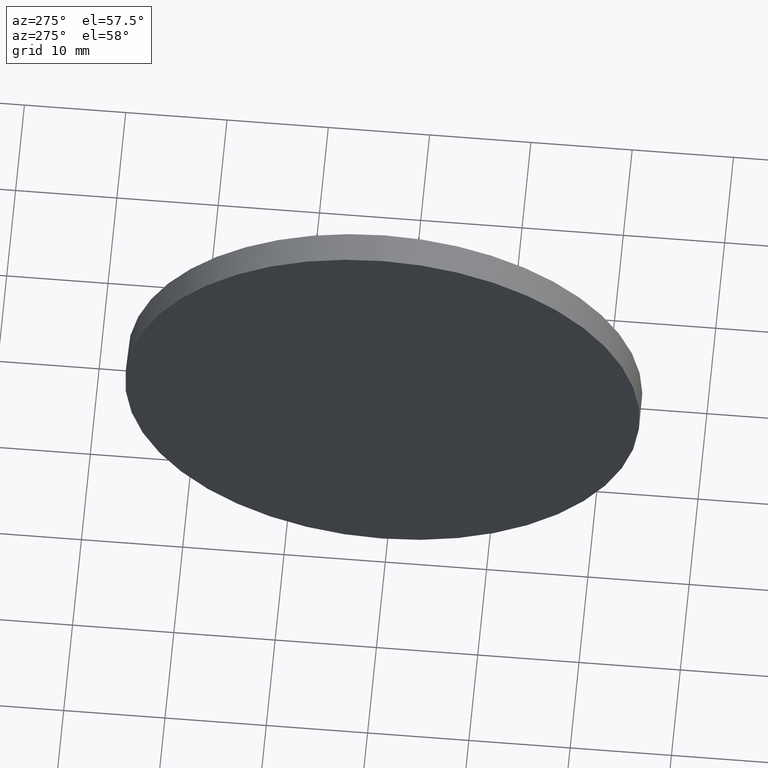
[diagram: clean part render]
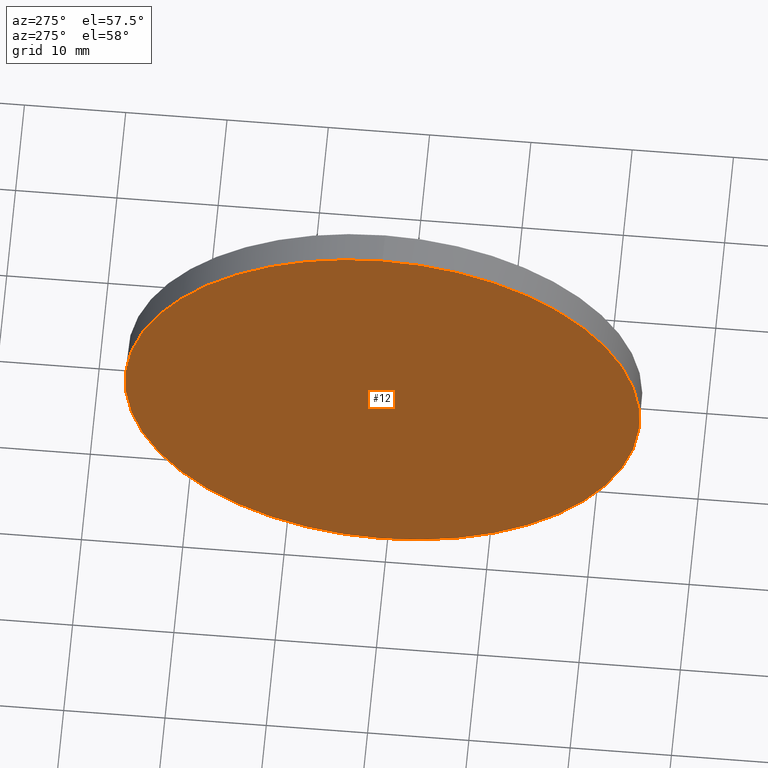
[diagram: same view with one face highlighted and labeled with its STEP entity id]
A machine part, auxiliary view. The second image highlights one B-rep face of the part: STEP entity #12.
In plain terms, the highlighted planar face has unit normal (1, 0, 0).
Its self-contained STEP definition (entity closure, byte-faithful):
#12 = ADVANCED_FACE ( 'NONE', ( #127 ), #121, .F. ) ;
#13 = CIRCLE ( 'NONE', #90, 25.40000000000000600 ) ;
#17 = DIRECTION ( 'NONE',  ( 0.0000000000000000000, 0.0000000000000000000, -1.000000000000000000 ) ) ;
#18 = VERTEX_POINT ( 'NONE', #149 ) ;
#23 = ORIENTED_EDGE ( 'NONE', *, *, #78, .T. ) ;
#40 = AXIS2_PLACEMENT_3D ( 'NONE', #104, #60, #157 ) ;
#48 = DIRECTION ( 'NONE',  ( -1.000000000000000000, -0.0000000000000000000, -0.0000000000000000000 ) ) ;
#60 = DIRECTION ( 'NONE',  ( -1.000000000000000000, -0.0000000000000000000, -0.0000000000000000000 ) ) ;
#68 = CIRCLE ( 'NONE', #40, 25.40000000000000600 ) ;
#71 = CARTESIAN_POINT ( 'NONE',  ( 232.0208200792423800, 130.4671098528243900, 0.0000000000000000000 ) ) ;
#76 = ORIENTED_EDGE ( 'NONE', *, *, #87, .T. ) ;
#78 = EDGE_CURVE ( 'NONE', #91, #18, #68, .T. ) ;
#86 = CARTESIAN_POINT ( 'NONE',  ( 232.0208200792423800, 130.4671098528243900, -25.40000000000000600 ) ) ;
#87 = EDGE_CURVE ( 'NONE', #18, #91, #13, .T. ) ;
#90 = AXIS2_PLACEMENT_3D ( 'NONE', #169, #48, #154 ) ;
#91 = VERTEX_POINT ( 'NONE', #86 ) ;
#96 = EDGE_LOOP ( 'NONE', ( #76, #23 ) ) ;
#104 = CARTESIAN_POINT ( 'NONE',  ( 232.0208200792423800, 130.4671098528243900, 0.0000000000000000000 ) ) ;
#121 = PLANE ( 'NONE',  #160 ) ;
#127 = FACE_OUTER_BOUND ( 'NONE', #96, .T. ) ;
#149 = CARTESIAN_POINT ( 'NONE',  ( 232.0208200792423800, 130.4671098528243900, 25.40000000000000600 ) ) ;
#154 = DIRECTION ( 'NONE',  ( 0.0000000000000000000, 0.0000000000000000000, 1.000000000000000000 ) ) ;
#157 = DIRECTION ( 'NONE',  ( 0.0000000000000000000, 0.0000000000000000000, 1.000000000000000000 ) ) ;
#160 = AXIS2_PLACEMENT_3D ( 'NONE', #71, #175, #17 ) ;
#169 = CARTESIAN_POINT ( 'NONE',  ( 232.0208200792423800, 130.4671098528243900, 0.0000000000000000000 ) ) ;
#175 = DIRECTION ( 'NONE',  ( 1.000000000000000000, 0.0000000000000000000, 0.0000000000000000000 ) ) ;